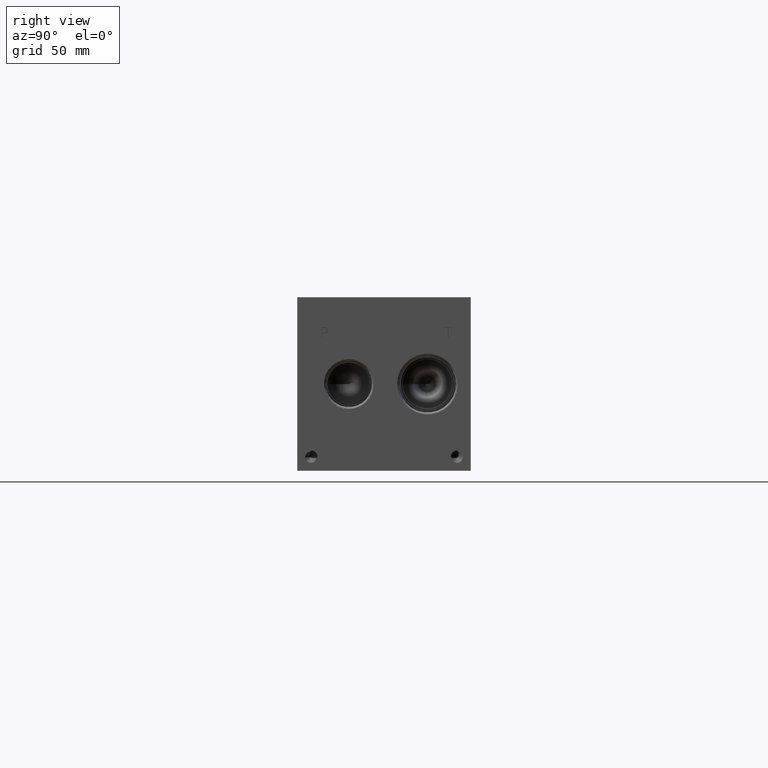
[diagram: clean part render]
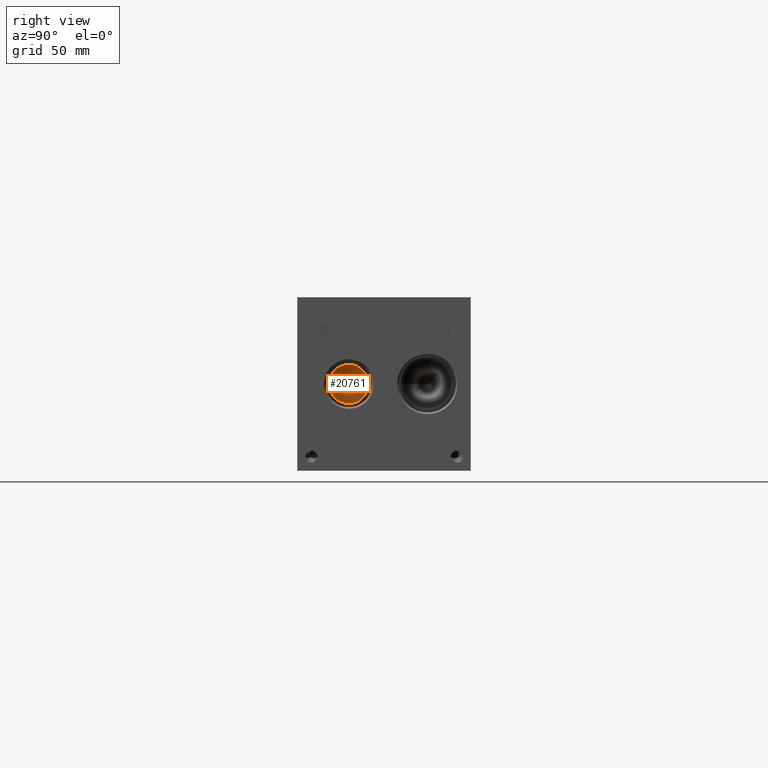
[diagram: same view with one face highlighted and labeled with its STEP entity id]
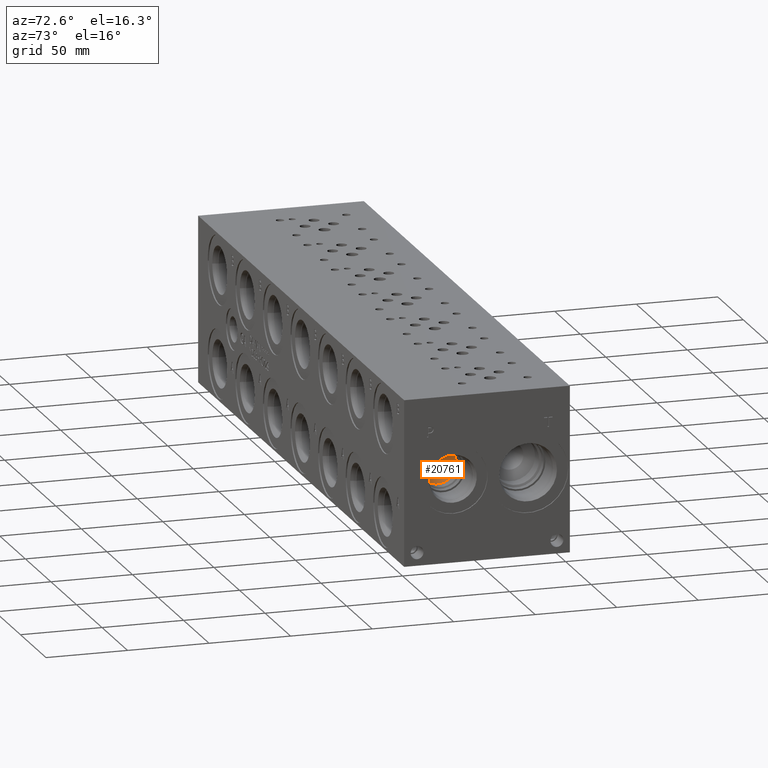
[diagram: same view with one face highlighted and labeled with its STEP entity id]
A machine part, right view. The second image highlights one B-rep face of the part: STEP entity #20761.
A second angle (auxiliary view) of the same face is appended — the face is thin or edge-on in the first view.
In plain terms, the highlighted conical surface has half-angle 60 deg.
Its self-contained STEP definition (entity closure, byte-faithful):
#218=CONICAL_SURFACE('',#21720,5.7531,1.0471975511966);
#424=CIRCLE('',#21721,11.5062);
#425=CIRCLE('',#21722,11.5062);
#2700=FACE_OUTER_BOUND('',#3906,.T.);
#3906=EDGE_LOOP('',(#16725,#16726,#16727,#16728));
#5864=LINE('',#34648,#7619);
#7619=VECTOR('',#25294,5.7531);
#9257=VERTEX_POINT('',#34644);
#9258=VERTEX_POINT('',#34645);
#9259=VERTEX_POINT('',#34647);
#11941=EDGE_CURVE('',#9257,#9258,#424,.T.);
#11942=EDGE_CURVE('',#9258,#9259,#5864,.T.);
#11943=EDGE_CURVE('',#9258,#9257,#425,.T.);
#16725=ORIENTED_EDGE('',*,*,#11941,.T.);
#16726=ORIENTED_EDGE('',*,*,#11942,.T.);
#16727=ORIENTED_EDGE('',*,*,#11942,.F.);
#16728=ORIENTED_EDGE('',*,*,#11943,.T.);
#20761=ADVANCED_FACE('',(#2700),#218,.F.);
#21720=AXIS2_PLACEMENT_3D('',#34643,#25290,#25291);
#21721=AXIS2_PLACEMENT_3D('',#34646,#25292,#25293);
#21722=AXIS2_PLACEMENT_3D('',#34649,#25295,#25296);
#25290=DIRECTION('center_axis',(1.,0.,0.));
#25291=DIRECTION('ref_axis',(0.,1.,0.));
#25292=DIRECTION('center_axis',(1.,0.,0.));
#25293=DIRECTION('ref_axis',(0.,1.,0.));
#25294=DIRECTION('',(-0.5,0.866025403784439,1.06057523872491E-16));
#25295=DIRECTION('center_axis',(1.,0.,0.));
#25296=DIRECTION('ref_axis',(0.,1.,0.));
#34643=CARTESIAN_POINT('Origin',(369.046226166325,30.1752,50.8));
#34644=CARTESIAN_POINT('',(372.36778,41.6814,50.8));
#34645=CARTESIAN_POINT('',(372.36778,18.669,50.8));
#34646=CARTESIAN_POINT('Origin',(372.36778,30.1752,50.8));
#34647=CARTESIAN_POINT('',(365.72467233265,30.1752,50.8));
#34648=CARTESIAN_POINT('',(369.046226166325,24.4221,50.8));
#34649=CARTESIAN_POINT('Origin',(372.36778,30.1752,50.8));